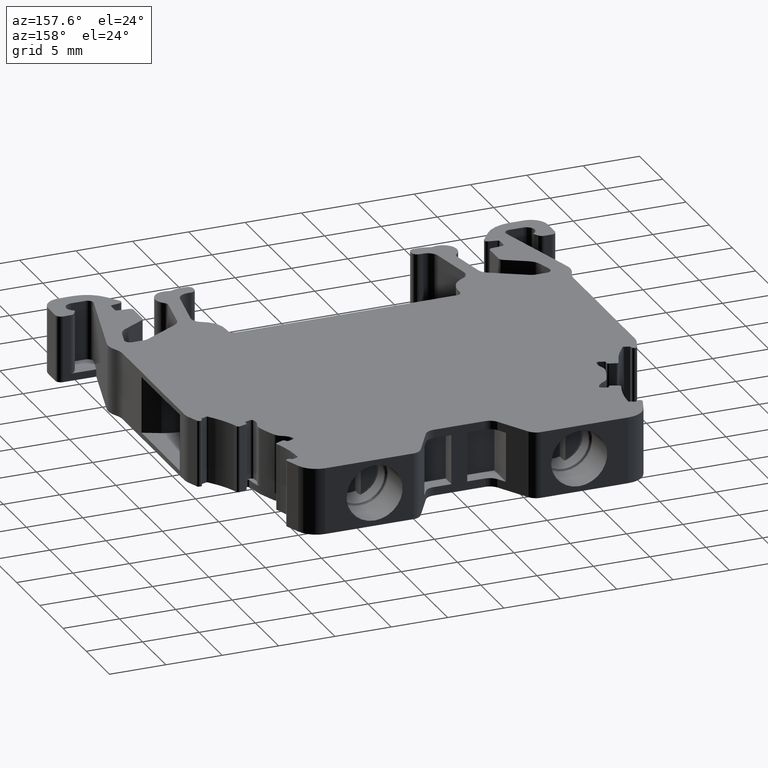
[diagram: clean part render]
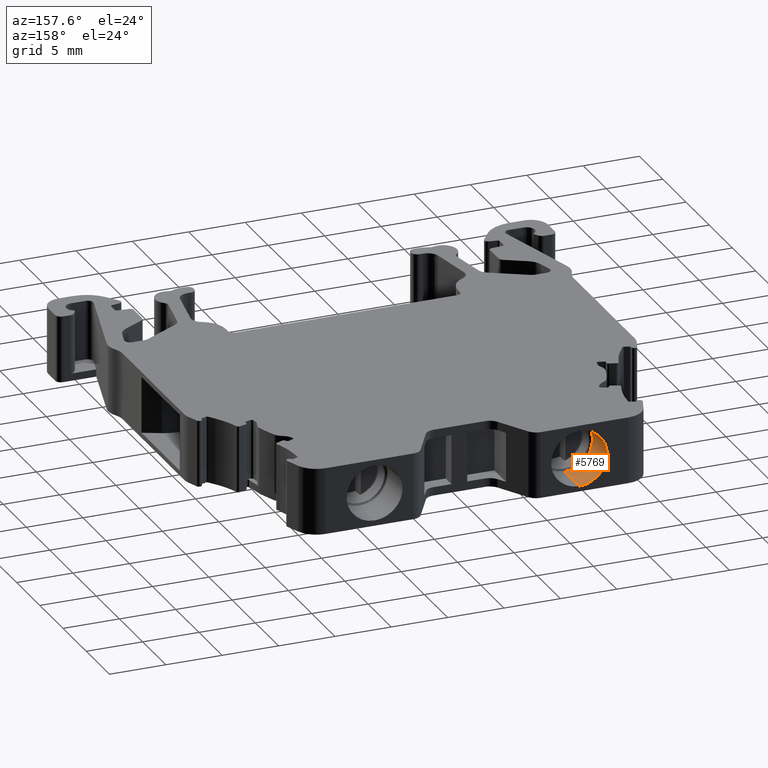
[diagram: same view with one face highlighted and labeled with its STEP entity id]
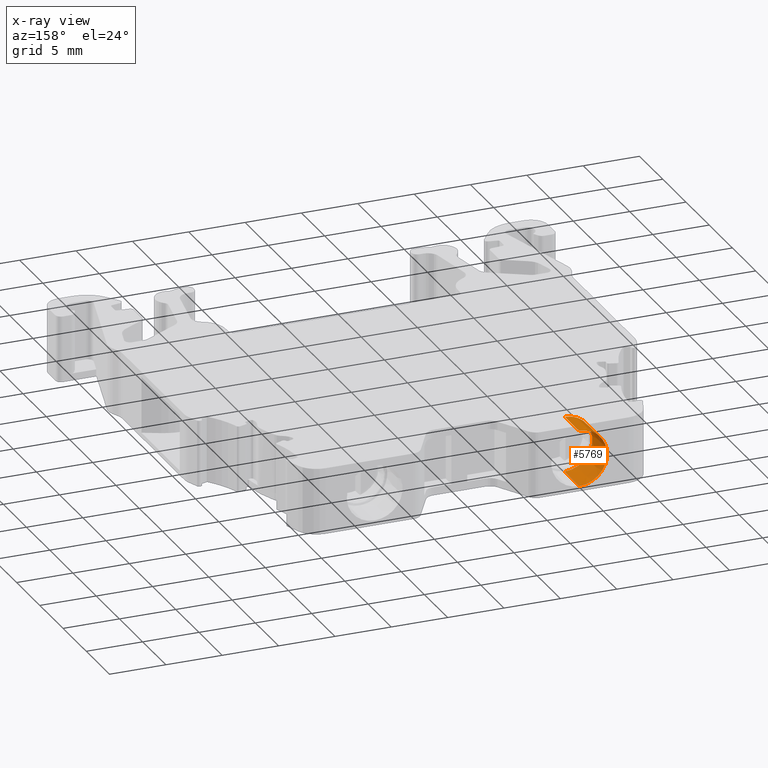
[diagram: x-ray of the same camera — body ghosted, the highlighted face saturated]
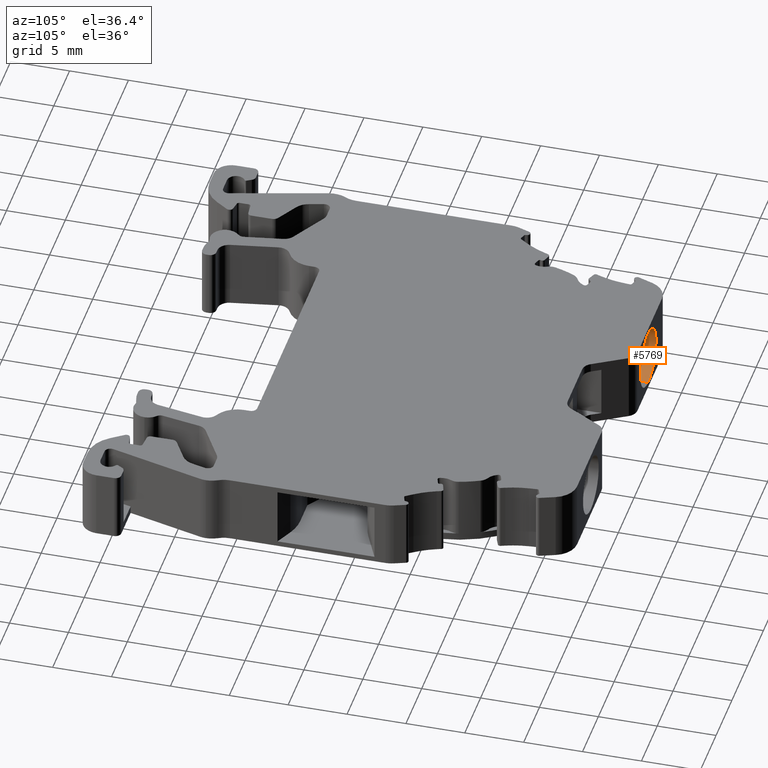
[diagram: same view with one face highlighted and labeled with its STEP entity id]
A machine part, auxiliary view. The second image highlights one B-rep face of the part: STEP entity #5769.
The next image is the same camera in x-ray: the body ghosted, the highlighted face saturated — about 0% of this face is hidden behind the body in this view.
A second angle (auxiliary view) of the same face is appended — the face is thin or edge-on in the first view.
In plain terms, the highlighted conical surface has half-angle 0.5 deg.
Its self-contained STEP definition (entity closure, byte-faithful):
#1642 = CIRCLE ( 'NONE', #1643, 2.482488710350061500 ) ;
#1643 = AXIS2_PLACEMENT_3D ( 'NONE', #4290, #4403, #4352 ) ;
#1648 = VECTOR ( 'NONE', #4219, 1000.000000000000000 ) ;
#1680 = VECTOR ( 'NONE', #4442, 1000.000000000000000 ) ;
#1810 = AXIS2_PLACEMENT_3D ( 'NONE', #5611, #5614, #5616 ) ;
#1811 = CIRCLE ( 'NONE', #1810, 2.455241607942859600 ) ;
#1925 = CONICAL_SURFACE ( 'NONE', #1928, 2.482488710350061500, 0.008726924975134303700 ) ;
#1928 = AXIS2_PLACEMENT_3D ( 'NONE', #10915, #10904, #10922 ) ;
#3670 = ORIENTED_EDGE ( 'NONE', *, *, #6448, .F. ) ;
#3708 = ORIENTED_EDGE ( 'NONE', *, *, #6333, .F. ) ;
#3715 = ORIENTED_EDGE ( 'NONE', *, *, #6328, .F. ) ;
#3718 = ORIENTED_EDGE ( 'NONE', *, *, #6326, .T. ) ;
#4196 = LINE ( 'NONE', #4204, #1648 ) ;
#4204 = CARTESIAN_POINT ( 'NONE',  ( 1451.103378640880000, 957.4726163252194100, -2.482488710350061500 ) ) ;
#4219 = DIRECTION ( 'NONE',  ( 1.068726508036408700E-018, 0.9999619206319146900, -0.008726814202923632200 ) ) ;
#4290 = CARTESIAN_POINT ( 'NONE',  ( 1451.103378640880000, 957.4726163252194100, 0.0000000000000000000 ) ) ;
#4352 = DIRECTION ( 'NONE',  ( 0.0000000000000000000, 0.0000000000000000000, 1.000000000000000000 ) ) ;
#4403 = DIRECTION ( 'NONE',  ( 0.0000000000000000000, -1.000000000000000000, -0.0000000000000000000 ) ) ;
#4442 = DIRECTION ( 'NONE',  ( 0.0000000000000000000, 0.9999619206319146900, 0.008726814202923632200 ) ) ;
#4448 = LINE ( 'NONE', #4513, #1680 ) ;
#4513 = CARTESIAN_POINT ( 'NONE',  ( 1451.103378640880000, 957.4726163252194100, 2.482488710350061500 ) ) ;
#5611 = CARTESIAN_POINT ( 'NONE',  ( 1451.103378640880000, 954.3505073606866100, 0.0000000000000000000 ) ) ;
#5614 = DIRECTION ( 'NONE',  ( 0.0000000000000000000, 1.000000000000000000, 0.0000000000000000000 ) ) ;
#5616 = DIRECTION ( 'NONE',  ( 0.0000000000000000000, 0.0000000000000000000, 1.000000000000000000 ) ) ;
#5769 = ADVANCED_FACE ( 'NONE', ( #10907 ), #1925, .F. ) ;
#6326 = EDGE_CURVE ( 'NONE', #10712, #10701, #4196, .T. ) ;
#6328 = EDGE_CURVE ( 'NONE', #10757, #10701, #1642, .T. ) ;
#6333 = EDGE_CURVE ( 'NONE', #10724, #10757, #4448, .T. ) ;
#6448 = EDGE_CURVE ( 'NONE', #10712, #10724, #1811, .T. ) ;
#7305 = CARTESIAN_POINT ( 'NONE',  ( 1451.103378640880000, 957.4726163252194100, -2.482488710350061500 ) ) ;
#7315 = CARTESIAN_POINT ( 'NONE',  ( 1451.103378640880000, 954.3505073606866100, 2.455241607942877400 ) ) ;
#7355 = CARTESIAN_POINT ( 'NONE',  ( 1451.103378640880000, 954.3505073606866100, -2.455241607942877400 ) ) ;
#8562 = CARTESIAN_POINT ( 'NONE',  ( 1451.103378640880000, 957.4726163252194100, 2.482488710350061500 ) ) ;
#10701 = VERTEX_POINT ( 'NONE', #7305 ) ;
#10712 = VERTEX_POINT ( 'NONE', #7355 ) ;
#10724 = VERTEX_POINT ( 'NONE', #7315 ) ;
#10757 = VERTEX_POINT ( 'NONE', #8562 ) ;
#10904 = DIRECTION ( 'NONE',  ( -0.0000000000000000000, 1.000000000000000000, 0.0000000000000000000 ) ) ;
#10907 = FACE_OUTER_BOUND ( 'NONE', #11351, .T. ) ;
#10915 = CARTESIAN_POINT ( 'NONE',  ( 1451.103378640880000, 957.4726163252194100, 0.0000000000000000000 ) ) ;
#10922 = DIRECTION ( 'NONE',  ( 0.0000000000000000000, 0.0000000000000000000, 1.000000000000000000 ) ) ;
#11351 = EDGE_LOOP ( 'NONE', ( #3670, #3718, #3715, #3708 ) ) ;